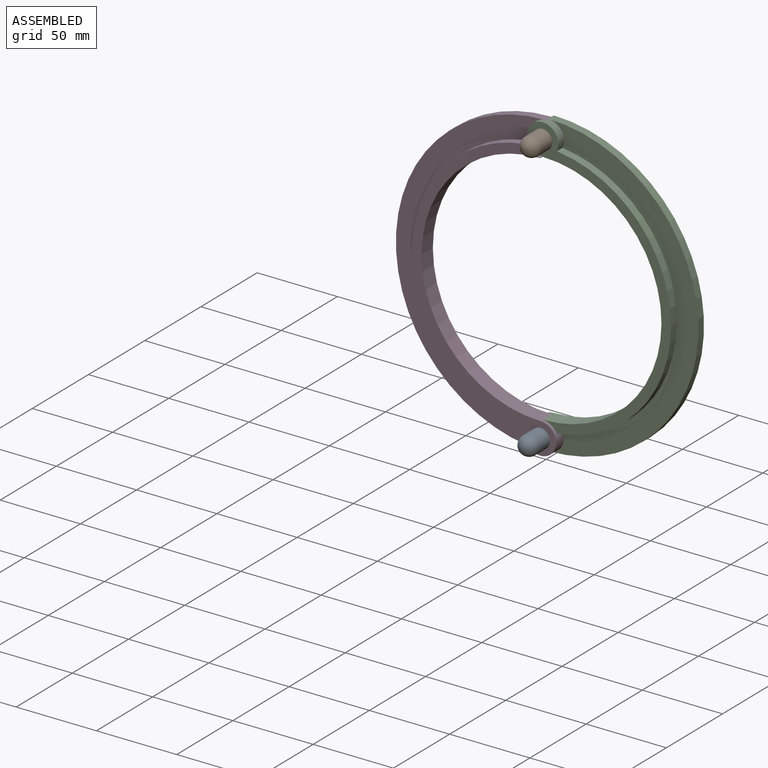
[diagram: assembled view]
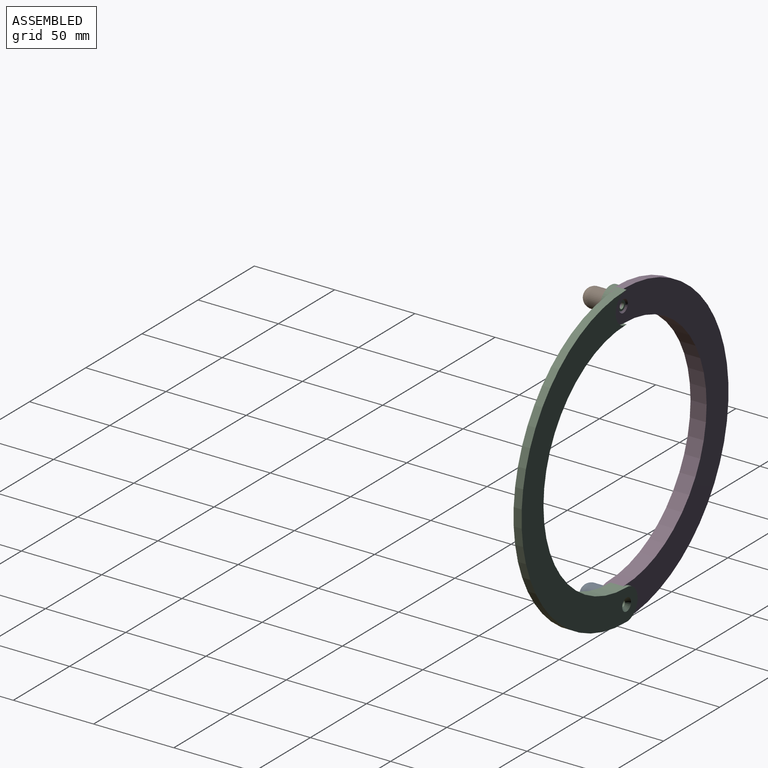
[diagram: assembled view, second angle]
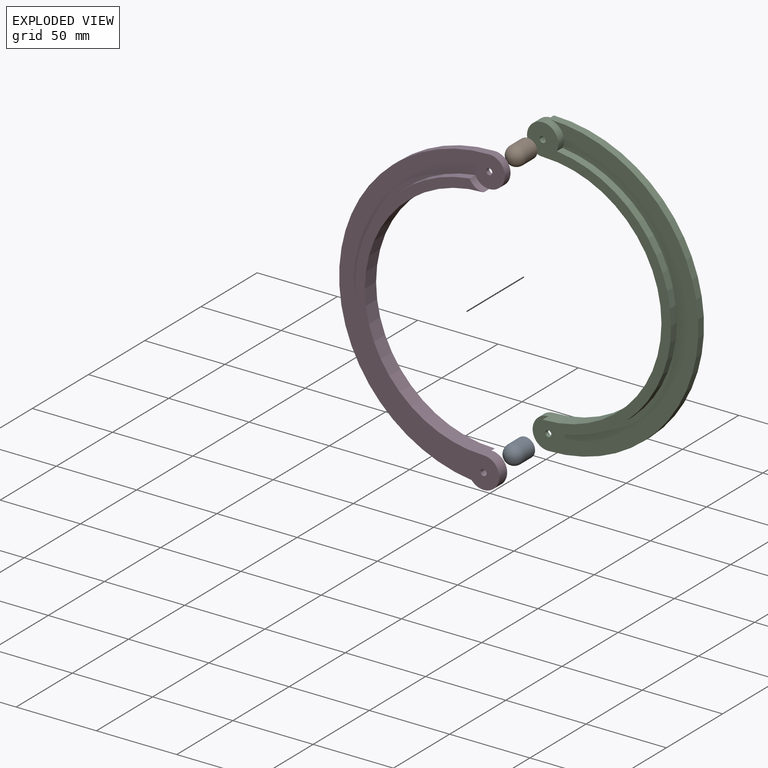
[diagram: exploded view]
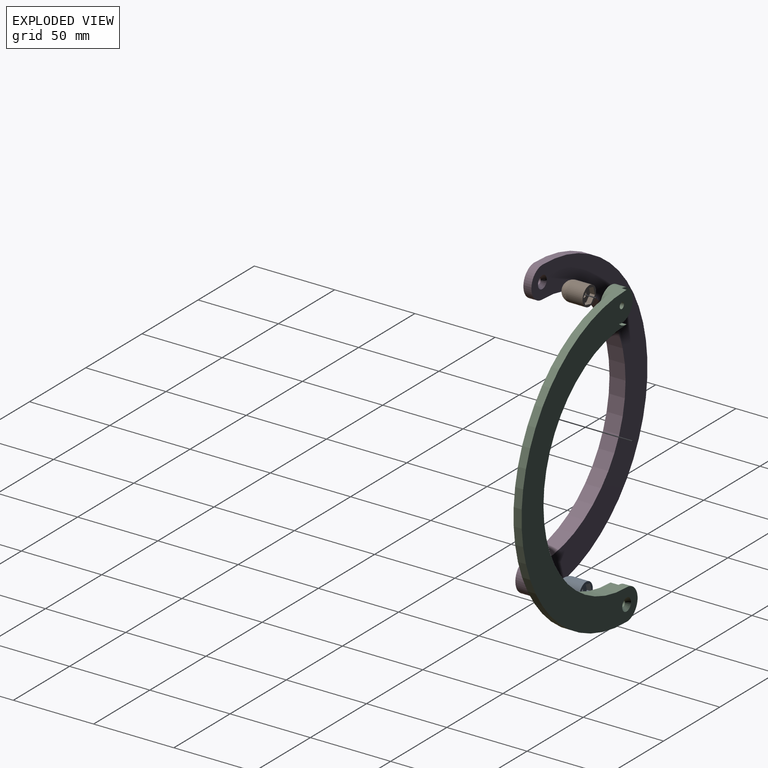
[diagram: exploded view, second angle]
ASSEMBLY  parts=4 mates=3
PART A: 16 faces, bbox 12x16x12 mm
  f0: plane 12x12mm, normal (0,1,0), area 42.9mm2, adj f1,f3,f4,f5,f6,f7,f8
  f1: cylinder r=6mm len=12mm, axis (0,1,0), area 377mm2, adj f0,f2
  f2: sphere r=6mm, area 226.2mm2, adj f1
  f3: plane 4.99x3mm, normal (0.96,0,-0.28), area 15.6mm2, adj f0,f4,f8,f9
  f4: plane 5.05x3mm, normal (0.24,0,-0.97), area 15.6mm2, adj f0,f3,f5,f9
  f5: plane 3.75x3.6mm, normal (-0.72,0,-0.69), area 15.6mm2, adj f0,f4,f6,f9
  f6: plane 4.99x3mm, normal (-0.96,0,0.28), area 15.6mm2, adj f0,f5,f7,f9
  f7: plane 5.05x3mm, normal (-0.24,0,0.97), area 15.6mm2, adj f0,f6,f8,f9
  f8: plane 3.75x3.6mm, normal (0.72,0,0.69), area 15.6mm2, adj f0,f3,f7,f9
  f9: plane 10.09x9.98mm, normal (0,1,0), area 60.5mm2, adj f3,f4,f5,f6,f7,f8,f11
  f10: sphere r=6mm, area 9.8mm2, adj f11
  f11: cylinder r=1.75mm len=3.5mm, axis (0,-1,0), area 13.9mm2, adj f9,f10
  f12: sphere r=1.9mm, area 22.7mm2, adj f14
  f13: cylinder r=1.75mm len=3.5mm, axis (0,-1,0), area 8.1mm2, adj f14,f15
  f14: plane 3.8x3.8mm, normal (0,-1,0), area 1.7mm2, adj f12,f13
  f15: sphere r=1.9mm, area 13.9mm2, adj f13
PART B: same geometry as A
PART C: 14 faces, bbox 103.3x10x187 mm
  f0: plane 187x103.25mm, normal (0,1,0), area 5082.9mm2, adj f4,f5,f7,f10,f12
  f1: cylinder r=80mm len=159.03mm, axis (0,1,0), area 1168.6mm2, adj f2,f3,f6,f8
  f2: plane 173.02x89.75mm, normal (0,-1,0), area 1663.6mm2, adj f1,f4,f6,f8,f13
  f3: plane 187x103.25mm, normal (0,-1,0), area 3743mm2, adj f1,f5,f6,f7,f8,f11
  f4: cylinder r=74mm len=148mm, axis (0,1,0), area 2324.8mm2, adj f0,f2,f6,f7,f8,f10
  f5: cylinder r=93.5mm len=187mm, axis (0,-1,0), area 1468.7mm2, adj f0,f3,f7,f8,f10
  f6: cylinder r=9.75mm len=8.78mm, axis (0,1,0), area 54.7mm2, adj f1,f2,f3,f4
  f7: cylinder r=9.75mm len=19.5mm, axis (0,1,0), area 153.2mm2, adj f0,f3,f4,f5
  f8: cylinder r=9.75mm len=19.5mm, axis (0,1,0), area 313.2mm2, adj f1,f2,f3,f4,f5,f9
  f9: plane 19.5x19.5mm, normal (0,1,0), area 287.3mm2, adj f8,f10,f13
  f10: cylinder r=9.75mm len=19.5mm, axis (0,1,0), area 91.6mm2, adj f0,f4,f5,f9
  f11: cylinder r=1.9mm len=3.8mm, axis (0,1,0), area 32.2mm2, adj f3,f12
  f12: cone r=1.9mm half-angle=41deg, axis (0,1,0), area 55.5mm2, adj f0,f11
  f13: cylinder r=1.9mm len=7.01mm, axis (0,1,0), area 83.6mm2, adj f2,f9
PART D: same geometry as C
PLACE A t=(0,-5,-203.3)mm
PLACE B rot(axis=(0,1,0),0deg) t=(0,-2.99,-35.8)mm
PLACE C rot(axis=(0,-1,0),180deg) t=(0,2.01,-35.8)mm
PLACE D t=(0,0,-35.8)mm fixed
MATE fastened A.f1 <-> D.f8  axis (0,1,0) through (0,-5,-119.55)mm
MATE fastened B.f1 <-> C.f8  axis (0,1,0) through (0,-2.99,47.95)mm
MATE revolute C.f6 <-> D.f8  axis (0,-1,0) through (0,2.01,-119.55)mm
